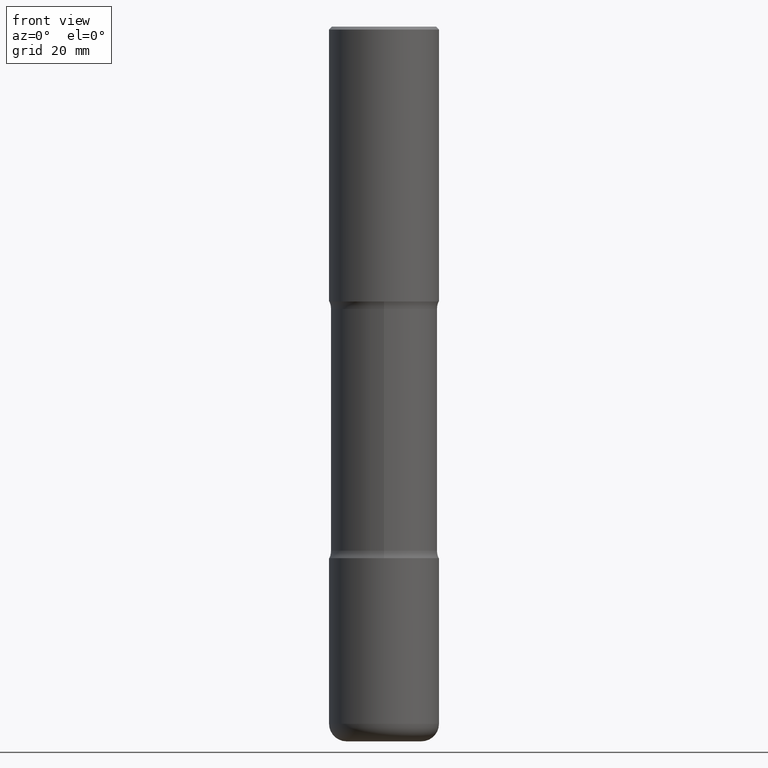
[diagram: clean part render]
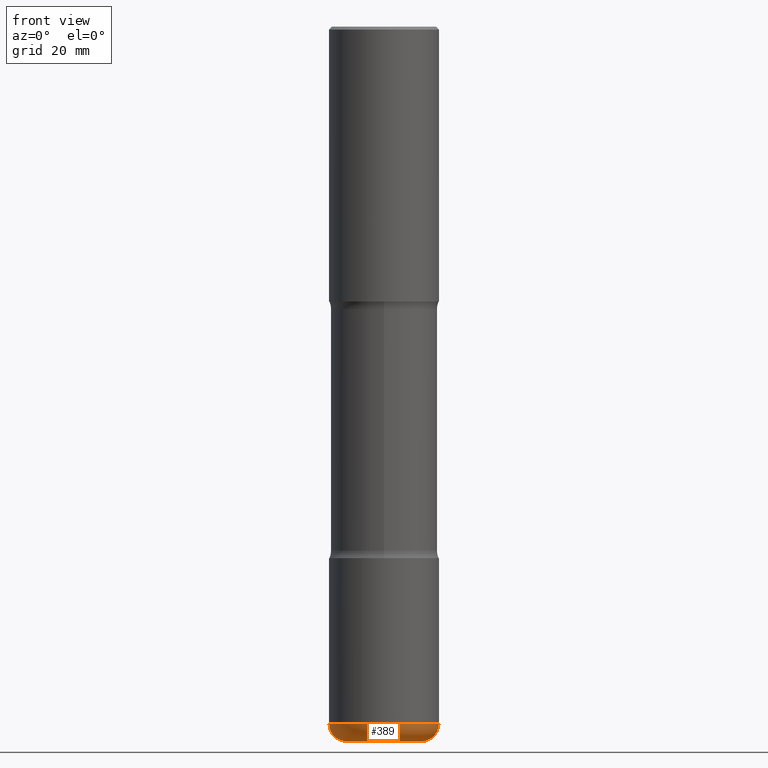
[diagram: same view with one face highlighted and labeled with its STEP entity id]
A machine part, front view. The second image highlights one B-rep face of the part: STEP entity #389.
In plain terms, the highlighted toroidal blend (fillet) surface has major radius 6.477 mm and minor (blend) radius 3.048 mm.
Its self-contained STEP definition (entity closure, byte-faithful):
#3 = AXIS2_PLACEMENT_3D ( 'NONE', #24, #367, #473 ) ;
#14 = CIRCLE ( 'NONE', #184, 0.1199999999999999539 ) ;
#24 = CARTESIAN_POINT ( 'NONE',  ( 1.162820417341032685E-28, -1.660199376619916000E-14, -4.755000000000000782 ) ) ;
#69 = CARTESIAN_POINT ( 'NONE',  ( 0.2550000000000008926, -1.880162700967033970E-14, -4.875000000000000000 ) ) ;
#123 = CARTESIAN_POINT ( 'NONE',  ( 1.162820417341032685E-28, -1.660199376619916000E-14, -4.755000000000000782 ) ) ;
#129 = ORIENTED_EDGE ( 'NONE', *, *, #426, .T. ) ;
#130 = CARTESIAN_POINT ( 'NONE',  ( 0.2550000000000008926, -1.838264924900916306E-14, -4.755000000000000782 ) ) ;
#144 = EDGE_LOOP ( 'NONE', ( #297, #129, #487, #162 ) ) ;
#153 = CARTESIAN_POINT ( 'NONE',  ( 0.3750000000000009437, -1.922060477033151633E-14, -4.755000000000000782 ) ) ;
#160 = EDGE_CURVE ( 'NONE', #329, #200, #478, .T. ) ;
#162 = ORIENTED_EDGE ( 'NONE', *, *, #492, .F. ) ;
#184 = AXIS2_PLACEMENT_3D ( 'NONE', #233, #244, #398 ) ;
#188 = CIRCLE ( 'NONE', #450, 0.3750000000000009992 ) ;
#200 = VERTEX_POINT ( 'NONE', #153 ) ;
#205 = DIRECTION ( 'NONE',  ( 1.000000000000000000, -6.982962677686266711E-15, 0.000000000000000000 ) ) ;
#233 = CARTESIAN_POINT ( 'NONE',  ( -0.2550000000000008926, -1.479010979001089582E-14, -4.755000000000000782 ) ) ;
#234 = CIRCLE ( 'NONE', #366, 0.2550000000000008926 ) ;
#244 = DIRECTION ( 'NONE',  ( 7.105427357601001859E-15, 1.000000000000000000, -3.491481338843145583E-15 ) ) ;
#259 = VERTEX_POINT ( 'NONE', #274 ) ;
#269 = EDGE_CURVE ( 'NONE', #259, #453, #14, .T. ) ;
#274 = CARTESIAN_POINT ( 'NONE',  ( -0.2550000000000008926, -1.457327302888542523E-14, -4.875000000000000000 ) ) ;
#292 = DIRECTION ( 'NONE',  ( -2.445468806185136597E-29, 3.491481338843145583E-15, 1.000000000000000000 ) ) ;
#297 = ORIENTED_EDGE ( 'NONE', *, *, #269, .F. ) ;
#329 = VERTEX_POINT ( 'NONE', #69 ) ;
#351 = AXIS2_PLACEMENT_3D ( 'NONE', #130, #424, #381 ) ;
#366 = AXIS2_PLACEMENT_3D ( 'NONE', #456, #503, #205 ) ;
#367 = DIRECTION ( 'NONE',  ( -2.445468806185136597E-29, 3.491481338843145583E-15, 1.000000000000000000 ) ) ;
#381 = DIRECTION ( 'NONE',  ( 1.000000000000000000, -6.982962677686270655E-15, 0.000000000000000000 ) ) ;
#389 = ADVANCED_FACE ( 'NONE', ( #416 ), #465, .T. ) ;
#398 = DIRECTION ( 'NONE',  ( -1.000000000000000000, 7.105427357600993970E-15, 0.000000000000000000 ) ) ;
#416 = FACE_OUTER_BOUND ( 'NONE', #144, .T. ) ;
#424 = DIRECTION ( 'NONE',  ( -6.982962677686266711E-15, -1.000000000000000000, 3.491481338843145583E-15 ) ) ;
#426 = EDGE_CURVE ( 'NONE', #259, #329, #234, .T. ) ;
#450 = AXIS2_PLACEMENT_3D ( 'NONE', #123, #292, #460 ) ;
#453 = VERTEX_POINT ( 'NONE', #552 ) ;
#456 = CARTESIAN_POINT ( 'NONE',  ( 1.192166043015254091E-28, -1.702097152686033664E-14, -4.875000000000000000 ) ) ;
#460 = DIRECTION ( 'NONE',  ( 1.000000000000000000, -6.982962677686265133E-15, 0.000000000000000000 ) ) ;
#465 = TOROIDAL_SURFACE ( 'NONE', #3, 0.2550000000000008926, 0.1199999999999999539 ) ;
#473 = DIRECTION ( 'NONE',  ( 1.000000000000000000, -6.982962677686267499E-15, 4.883557194083113462E-29 ) ) ;
#478 = CIRCLE ( 'NONE', #351, 0.1199999999999999539 ) ;
#487 = ORIENTED_EDGE ( 'NONE', *, *, #160, .T. ) ;
#492 = EDGE_CURVE ( 'NONE', #453, #200, #188, .T. ) ;
#503 = DIRECTION ( 'NONE',  ( -2.445468806185136597E-29, 3.491481338843145583E-15, 1.000000000000000000 ) ) ;
#552 = CARTESIAN_POINT ( 'NONE',  ( -0.3750000000000009437, -1.393745850709877800E-14, -4.755000000000000782 ) ) ;